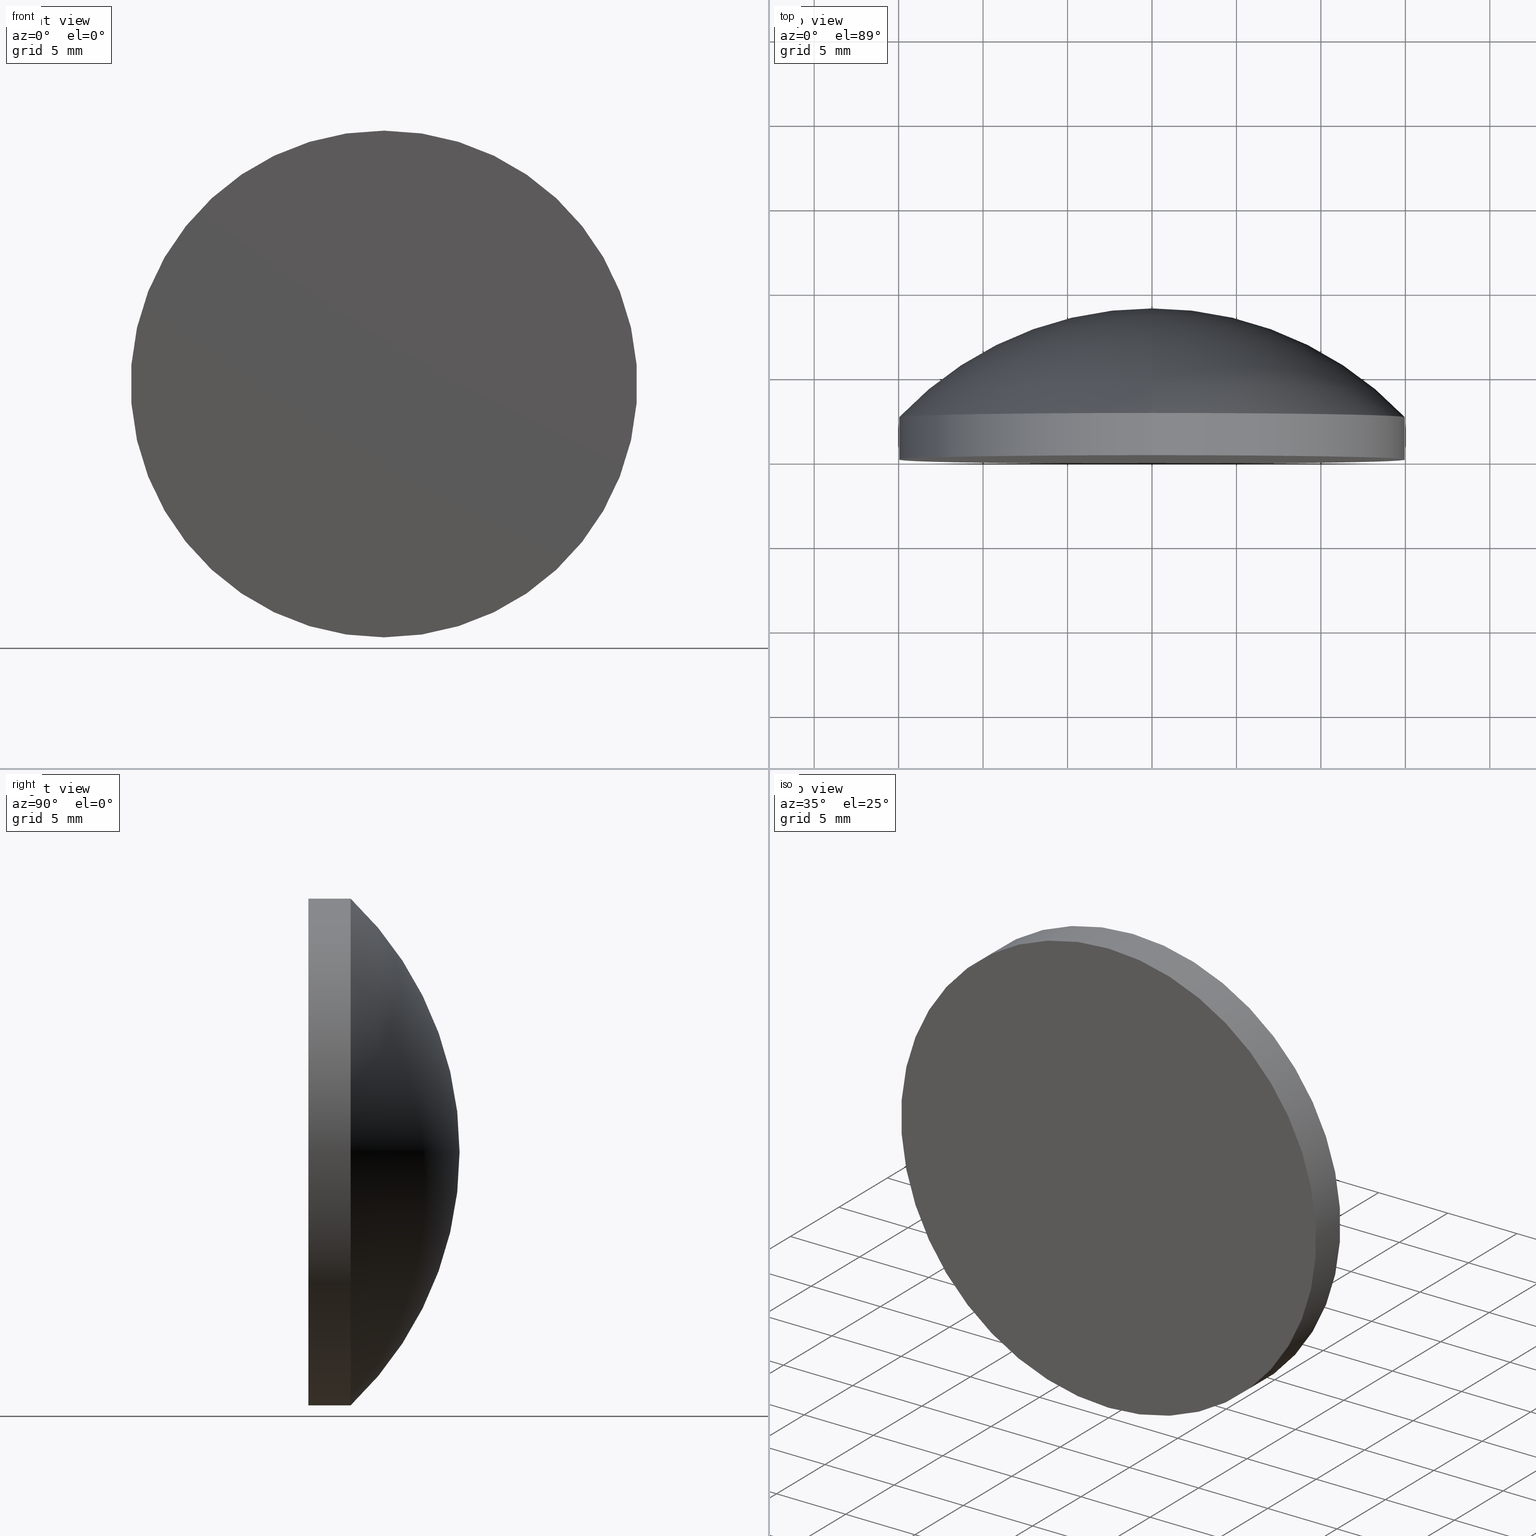
[diagram: canonical four-view strip — front | top / right | iso, engineering-drawing reading convention]
A machine part, canonical four-view strip (front | top / right | iso — engineering-drawing reading convention). The complete STEP part file that produces these views, byte-faithful:
ISO-10303-21;
HEADER;
FILE_DESCRIPTION (( 'STEP AP203' ),
    '1' );
FILE_NAME ('100571.STEP',
    '2024-05-09T07:51:30',
    ( '' ),
    ( '' ),
    'SwSTEP 2.0',
    'SolidWorks 2020',
    '' );
FILE_SCHEMA (( 'CONFIG_CONTROL_DESIGN' ));
ENDSEC;

DATA;
#1 = SECURITY_CLASSIFICATION_LEVEL ( 'unclassified' ) ;
#2 = ORIENTED_EDGE ( 'NONE', *, *, #139, .F. ) ;
#3 = DIRECTION ( 'NONE',  ( 0.000000000000000000, 0.000000000000000000, 1.000000000000000000 ) ) ;
#4 = PERSON_AND_ORGANIZATION_ROLE ( 'design_owner' ) ;
#5 = DIRECTION ( 'NONE',  ( 0.000000000000000000, 0.000000000000000000, 1.000000000000000000 ) ) ;
#6 = PERSON_AND_ORGANIZATION ( #98, #87 ) ;
#7 = DIRECTION ( 'NONE',  ( 0.000000000000000000, 0.000000000000000000, 1.000000000000000000 ) ) ;
#8 = PRODUCT ( '100571', '100571', '', ( #99 ) ) ;
#9 = VECTOR ( 'NONE', #81, 1000.000000000000000 ) ;
#10 = AXIS2_PLACEMENT_3D ( 'NONE', #108, #18, #51 ) ;
#11 = CIRCLE ( 'NONE', #119, 15.00000000000000000 ) ;
#12 = APPROVAL_DATE_TIME ( #136, #165 ) ;
#13 = MANIFOLD_SOLID_BREP ( '��ת1', #138 ) ;
#14 = VERTEX_POINT ( 'NONE', #169 ) ;
#15 =( LENGTH_UNIT ( ) NAMED_UNIT ( * ) SI_UNIT ( .MILLI., .METRE. ) );
#16 = ORIENTED_EDGE ( 'NONE', *, *, #199, .F. ) ;
#17 = CARTESIAN_POINT ( 'NONE',  ( 0.000000000000000000, -1.734723475976807094E-15, 0.000000000000000000 ) ) ;
#18 = DIRECTION ( 'NONE',  ( 0.000000000000000000, 0.000000000000000000, 1.000000000000000000 ) ) ;
#19 = DATE_AND_TIME ( #168, #142 ) ;
#20 = CARTESIAN_POINT ( 'NONE',  ( 0.000000000000000000, -1.734723475976807094E-15, 0.000000000000000000 ) ) ;
#21 = CC_DESIGN_APPROVAL ( #72, ( #104 ) ) ;
#22 = DIRECTION ( 'NONE',  ( 1.000000000000000000, 0.000000000000000000, 1.224646799147353207E-16 ) ) ;
#23 = EDGE_CURVE ( 'NONE', #94, #14, #93, .T. ) ;
#24 = CC_DESIGN_PERSON_AND_ORGANIZATION_ASSIGNMENT ( #133, #91, ( #48 ) ) ;
#25 = ORIENTED_EDGE ( 'NONE', *, *, #23, .F. ) ;
#26 = ORIENTED_EDGE ( 'NONE', *, *, #154, .F. ) ;
#27 = CC_DESIGN_PERSON_AND_ORGANIZATION_ASSIGNMENT ( #149, #31, ( #104 ) ) ;
#28 = COORDINATED_UNIVERSAL_TIME_OFFSET ( 8, 0, .AHEAD. ) ;
#29 = EDGE_LOOP ( 'NONE', ( #143, #90, #2 ) ) ;
#30 = AXIS2_PLACEMENT_3D ( 'NONE', #66, #152, #52 ) ;
#31 = PERSON_AND_ORGANIZATION_ROLE ( 'creator' ) ;
#32 = LINE ( 'NONE', #161, #9 ) ;
#33 = CARTESIAN_POINT ( 'NONE',  ( 0.000000000000000000, 8.949999999999999289, 0.000000000000000000 ) ) ;
#34 = COORDINATED_UNIVERSAL_TIME_OFFSET ( 8, 0, .AHEAD. ) ;
#35 = DIRECTION ( 'NONE',  ( -0.000000000000000000, 1.000000000000000000, -0.000000000000000000 ) ) ;
#36 = DATE_AND_TIME ( #128, #60 ) ;
#37 = APPROVAL_PERSON_ORGANIZATION ( #200, #166, #171 ) ;
#38 = CC_DESIGN_PERSON_AND_ORGANIZATION_ASSIGNMENT ( #78, #4, ( #8 ) ) ;
#39 = AXIS2_PLACEMENT_3D ( 'NONE', #113, #63, #110 ) ;
#40 = EDGE_LOOP ( 'NONE', ( #158, #16 ) ) ;
#41 = CC_DESIGN_SECURITY_CLASSIFICATION ( #177, ( #48 ) ) ;
#42 = APPROVAL_ROLE ( '' ) ;
#43 = DIRECTION ( 'NONE',  ( -0.000000000000000000, 1.000000000000000000, -0.000000000000000000 ) ) ;
#44 = APPROVAL_DATE_TIME ( #36, #166 ) ;
#45 = ORIENTED_EDGE ( 'NONE', *, *, #154, .T. ) ;
#46 =( NAMED_UNIT ( * ) PLANE_ANGLE_UNIT ( ) SI_UNIT ( $, .RADIAN. ) );
#47 = PERSON_AND_ORGANIZATION ( #98, #87 ) ;
#48 = PRODUCT_DEFINITION_FORMATION_WITH_SPECIFIED_SOURCE ( '�κ�', '', #8, .NOT_KNOWN. ) ;
#49 = APPROVAL_ROLE ( '' ) ;
#50 = CARTESIAN_POINT ( 'NONE',  ( -1.653249964113639859E-19, -11.71999995591560584, 0.001349981043730075214 ) ) ;
#51 = DIRECTION ( 'NONE',  ( 1.000000000000000000, 0.000000000000000000, 0.000000000000000000 ) ) ;
#52 = DIRECTION ( 'NONE',  ( 0.000000000000000000, 0.000000000000000000, 1.000000000000000000 ) ) ;
#53 = AXIS2_PLACEMENT_3D ( 'NONE', #92, #43, #183 ) ;
#54 = ADVANCED_FACE ( 'NONE', ( #147 ), #186, .T. ) ;
#55 = AXIS2_PLACEMENT_3D ( 'NONE', #20, #132, #68 ) ;
#56 = EDGE_CURVE ( 'NONE', #75, #14, #32, .T. ) ;
#57 = VECTOR ( 'NONE', #187, 1000.000000000000000 ) ;
#58 = VERTEX_POINT ( 'NONE', #129 ) ;
#59 = AXIS2_PLACEMENT_3D ( 'NONE', #174, #137, #192 ) ;
#60 = LOCAL_TIME ( 15, 51, 30.00000000000000000, #175 ) ;
#61 = ORIENTED_EDGE ( 'NONE', *, *, #179, .T. ) ;
#62 = APPROVAL_STATUS ( 'not_yet_approved' ) ;
#63 = DIRECTION ( 'NONE',  ( -0.000000000000000000, 1.000000000000000000, -0.000000000000000000 ) ) ;
#64 = CARTESIAN_POINT ( 'NONE',  ( 0.000000000000000000, -11.71999995591560584, 0.000000000000000000 ) ) ;
#65 = APPROVAL_STATUS ( 'not_yet_approved' ) ;
#66 = CARTESIAN_POINT ( 'NONE',  ( 0.000000000000000000, 8.949999999999999289, 0.000000000000000000 ) ) ;
#67 = APPLICATION_PROTOCOL_DEFINITION ( 'international standard', 'config_control_design', 1994, #120 ) ;
#68 = DIRECTION ( 'NONE',  ( 0.000000000000000000, 0.000000000000000000, 1.000000000000000000 ) ) ;
#69 = AXIS2_PLACEMENT_3D ( 'NONE', #135, #85, #164 ) ;
#70 = PERSON_AND_ORGANIZATION ( #98, #87 ) ;
#71 = FACE_OUTER_BOUND ( 'NONE', #29, .T. ) ;
#72 = APPROVAL ( #65, 'δָ��' ) ;
#73 = ADVANCED_FACE ( 'NONE', ( #150 ), #105, .T. ) ;
#74 = DESIGN_CONTEXT ( 'detailed design', #120, 'design' ) ;
#75 = VERTEX_POINT ( 'NONE', #148 ) ;
#76 = APPROVAL_PERSON_ORGANIZATION ( #151, #165, #49 ) ;
#77 = AXIS2_PLACEMENT_3D ( 'NONE', #50, #22, #83 ) ;
#78 = PERSON_AND_ORGANIZATION ( #98, #87 ) ;
#79 = APPLICATION_PROTOCOL_DEFINITION ( 'international standard', 'config_control_design', 1994, #86 ) ;
#80 = CC_DESIGN_DATE_AND_TIME_ASSIGNMENT ( #146, #114, ( #177 ) ) ;
#81 = DIRECTION ( 'NONE',  ( -0.000000000000000000, 1.000000000000000000, -0.000000000000000000 ) ) ;
#82 = DIRECTION ( 'NONE',  ( -1.000000000000000000, 0.000000000000000000, 0.000000000000000000 ) ) ;
#83 = DIRECTION ( 'NONE',  ( 1.224646799147353207E-16, 0.000000000000000000, -1.000000000000000000 ) ) ;
#84 = DATE_TIME_ROLE ( 'creation_date' ) ;
#85 = DIRECTION ( 'NONE',  ( -0.000000000000000000, 1.000000000000000000, -0.000000000000000000 ) ) ;
#86 = APPLICATION_CONTEXT ( 'configuration controlled 3d designs of mechanical parts and assemblies' ) ;
#87 = ORGANIZATION ( 'δָ��', 'δָ��', '' ) ;
#88 = FACE_OUTER_BOUND ( 'NONE', #40, .T. ) ;
#89 = ADVANCED_FACE ( 'NONE', ( #71 ), #145, .T. ) ;
#90 = ORIENTED_EDGE ( 'NONE', *, *, #109, .T. ) ;
#91 = PERSON_AND_ORGANIZATION_ROLE ( 'creator' ) ;
#92 = CARTESIAN_POINT ( 'NONE',  ( 0.000000000000000000, 2.499999999999998668, 0.000000000000000000 ) ) ;
#93 = CIRCLE ( 'NONE', #53, 15.00000000000000000 ) ;
#94 = VERTEX_POINT ( 'NONE', #130 ) ;
#95 = DIRECTION ( 'NONE',  ( -0.000000000000000000, 1.000000000000000000, -0.000000000000000000 ) ) ;
#96 = CALENDAR_DATE ( 2024, 9, 5 ) ;
#97 = PLANE ( 'NONE',  #176 ) ;
#98 = PERSON ( 'δָ��', 'δָ��', 'δָ��', ('δָ��'), ('δָ��'), ('δָ��') ) ;
#99 = MECHANICAL_CONTEXT ( 'NONE', #86, 'mechanical' ) ;
#100 = CYLINDRICAL_SURFACE ( 'NONE', #30, 15.00000000000000000 ) ;
#101 = CC_DESIGN_PERSON_AND_ORGANIZATION_ASSIGNMENT ( #70, #117, ( #177 ) ) ;
#102 = CC_DESIGN_APPROVAL ( #166, ( #177 ) ) ;
#103 =( NAMED_UNIT ( * ) SI_UNIT ( $, .STERADIAN. ) SOLID_ANGLE_UNIT ( ) );
#104 = PRODUCT_DEFINITION ( 'δ֪', '', #48, #74 ) ;
#105 = TOROIDAL_SURFACE ( 'NONE', #198, -0.001349981043730075214, 20.67000000000000526 ) ;
#106 = ORIENTED_EDGE ( 'NONE', *, *, #56, .T. ) ;
#107 = CIRCLE ( 'NONE', #55, 15.00000000000000000 ) ;
#108 = CARTESIAN_POINT ( 'NONE',  ( 0.000000000000000000, 0.000000000000000000, 0.000000000000000000 ) ) ;
#109 = EDGE_CURVE ( 'NONE', #14, #125, #156, .T. ) ;
#110 = DIRECTION ( 'NONE',  ( 0.000000000000000000, 0.000000000000000000, 1.000000000000000000 ) ) ;
#111 = PRODUCT_RELATED_PRODUCT_CATEGORY ( 'detail', '', ( #8 ) ) ;
#112 = SHAPE_DEFINITION_REPRESENTATION ( #121, #189 ) ;
#113 = CARTESIAN_POINT ( 'NONE',  ( 0.000000000000000000, 8.949999999999999289, 0.000000000000000000 ) ) ;
#114 = DATE_TIME_ROLE ( 'classification_date' ) ;
#115 = PERSON_AND_ORGANIZATION_ROLE ( 'design_supplier' ) ;
#116 = CARTESIAN_POINT ( 'NONE',  ( 0.000000000000000000, -11.71999995591560584, -0.001349981043730075214 ) ) ;
#117 = PERSON_AND_ORGANIZATION_ROLE ( 'classification_officer' ) ;
#118 = CARTESIAN_POINT ( 'NONE',  ( 0.000000000000000000, 8.949999999999999289, 15.00000000000000000 ) ) ;
#119 = AXIS2_PLACEMENT_3D ( 'NONE', #17, #95, #5 ) ;
#120 = APPLICATION_CONTEXT ( 'configuration controlled 3d designs of mechanical parts and assemblies' ) ;
#121 = PRODUCT_DEFINITION_SHAPE ( 'NONE', 'NONE',  #104 ) ;
#122 = CIRCLE ( 'NONE', #155, 20.67000000000000526 ) ;
#123 = ORIENTED_EDGE ( 'NONE', *, *, #109, .F. ) ;
#124 = UNCERTAINTY_MEASURE_WITH_UNIT (LENGTH_MEASURE( 1.000000000000000082E-05 ), #15, 'distance_accuracy_value', 'NONE');
#125 = VERTEX_POINT ( 'NONE', #33 ) ;
#126 = ADVANCED_FACE ( 'NONE', ( #190 ), #100, .T. ) ;
#127 = ORIENTED_EDGE ( 'NONE', *, *, #199, .T. ) ;
#128 = CALENDAR_DATE ( 2024, 9, 5 ) ;
#129 = CARTESIAN_POINT ( 'NONE',  ( 0.000000000000000000, -1.734723475976807094E-15, 15.00000000000000000 ) ) ;
#130 = CARTESIAN_POINT ( 'NONE',  ( 0.000000000000000000, 2.499999999999999556, 14.99999999999999645 ) ) ;
#131 = DATE_AND_TIME ( #173, #195 ) ;
#132 = DIRECTION ( 'NONE',  ( -0.000000000000000000, 1.000000000000000000, -0.000000000000000000 ) ) ;
#133 = PERSON_AND_ORGANIZATION ( #98, #87 ) ;
#134 = APPROVAL_PERSON_ORGANIZATION ( #6, #72, #42 ) ;
#135 = CARTESIAN_POINT ( 'NONE',  ( 0.000000000000000000, 2.499999999999998668, 0.000000000000000000 ) ) ;
#136 = DATE_AND_TIME ( #153, #191 ) ;
#137 = DIRECTION ( 'NONE',  ( -0.000000000000000000, 1.000000000000000000, -0.000000000000000000 ) ) ;
#138 = CLOSED_SHELL ( 'NONE', ( #126, #89, #73, #144, #54 ) ) ;
#139 = EDGE_CURVE ( 'NONE', #94, #125, #122, .T. ) ;
#140 = LOCAL_TIME ( 15, 51, 30.00000000000000000, #28 ) ;
#141 = CC_DESIGN_PERSON_AND_ORGANIZATION_ASSIGNMENT ( #47, #115, ( #48 ) ) ;
#142 = LOCAL_TIME ( 15, 51, 30.00000000000000000, #34 ) ;
#143 = ORIENTED_EDGE ( 'NONE', *, *, #23, .T. ) ;
#144 = ADVANCED_FACE ( 'NONE', ( #88 ), #97, .T. ) ;
#145 = TOROIDAL_SURFACE ( 'NONE', #59, -0.001349981043730075214, 20.67000000000000526 ) ;
#146 = DATE_AND_TIME ( #96, #140 ) ;
#147 = FACE_OUTER_BOUND ( 'NONE', #180, .T. ) ;
#148 = CARTESIAN_POINT ( 'NONE',  ( 1.836970198721029589E-15, -1.734723475976807094E-15, -15.00000000000000000 ) ) ;
#149 = PERSON_AND_ORGANIZATION ( #98, #87 ) ;
#150 = FACE_OUTER_BOUND ( 'NONE', #167, .T. ) ;
#151 = PERSON_AND_ORGANIZATION ( #98, #87 ) ;
#152 = DIRECTION ( 'NONE',  ( -0.000000000000000000, 1.000000000000000000, -0.000000000000000000 ) ) ;
#153 = CALENDAR_DATE ( 2024, 9, 5 ) ;
#154 = EDGE_CURVE ( 'NONE', #58, #94, #172, .T. ) ;
#155 = AXIS2_PLACEMENT_3D ( 'NONE', #116, #82, #3 ) ;
#156 = CIRCLE ( 'NONE', #77, 20.67000000000000526 ) ;
#157 = CC_DESIGN_APPROVAL ( #165, ( #48 ) ) ;
#158 = ORIENTED_EDGE ( 'NONE', *, *, #179, .F. ) ;
#159 = CIRCLE ( 'NONE', #69, 15.00000000000000000 ) ;
#160 = EDGE_LOOP ( 'NONE', ( #61, #106, #25, #26 ) ) ;
#161 = CARTESIAN_POINT ( 'NONE',  ( 1.836970198721029589E-15, 8.949999999999999289, -15.00000000000000000 ) ) ;
#162 = DIRECTION ( 'NONE',  ( 0.000000000000000000, -0.000000000000000000, -1.000000000000000000 ) ) ;
#163 = COORDINATED_UNIVERSAL_TIME_OFFSET ( 8, 0, .AHEAD. ) ;
#164 = DIRECTION ( 'NONE',  ( 0.000000000000000000, 0.000000000000000000, 1.000000000000000000 ) ) ;
#165 = APPROVAL ( #184, 'δָ��' ) ;
#166 = APPROVAL ( #62, 'δָ��' ) ;
#167 = EDGE_LOOP ( 'NONE', ( #123, #181, #197 ) ) ;
#168 = CALENDAR_DATE ( 2024, 9, 5 ) ;
#169 = CARTESIAN_POINT ( 'NONE',  ( 1.836970198721029194E-15, 2.499999999999999556, -14.99999999999999645 ) ) ;
#170 = CARTESIAN_POINT ( 'NONE',  ( 0.000000000000000000, -9.184850993605147944E-16, 0.000000000000000000 ) ) ;
#171 = APPROVAL_ROLE ( '' ) ;
#172 = LINE ( 'NONE', #118, #57 ) ;
#173 = CALENDAR_DATE ( 2024, 9, 5 ) ;
#174 = CARTESIAN_POINT ( 'NONE',  ( 0.000000000000000000, -11.71999995591560584, 0.000000000000000000 ) ) ;
#175 = COORDINATED_UNIVERSAL_TIME_OFFSET ( 8, 0, .AHEAD. ) ;
#176 = AXIS2_PLACEMENT_3D ( 'NONE', #170, #194, #162 ) ;
#177 = SECURITY_CLASSIFICATION ( '', '', #1 ) ;
#178 =( GEOMETRIC_REPRESENTATION_CONTEXT ( 3 ) GLOBAL_UNCERTAINTY_ASSIGNED_CONTEXT ( ( #124 ) ) GLOBAL_UNIT_ASSIGNED_CONTEXT ( ( #15, #46, #103 ) ) REPRESENTATION_CONTEXT ( 'NONE', 'WORKASPACE' ) );
#179 = EDGE_CURVE ( 'NONE', #58, #75, #11, .T. ) ;
#180 = EDGE_LOOP ( 'NONE', ( #201, #127, #45, #182 ) ) ;
#181 = ORIENTED_EDGE ( 'NONE', *, *, #185, .T. ) ;
#182 = ORIENTED_EDGE ( 'NONE', *, *, #185, .F. ) ;
#183 = DIRECTION ( 'NONE',  ( 0.000000000000000000, 0.000000000000000000, 1.000000000000000000 ) ) ;
#184 = APPROVAL_STATUS ( 'not_yet_approved' ) ;
#185 = EDGE_CURVE ( 'NONE', #14, #94, #159, .T. ) ;
#186 = CYLINDRICAL_SURFACE ( 'NONE', #39, 15.00000000000000000 ) ;
#187 = DIRECTION ( 'NONE',  ( -0.000000000000000000, 1.000000000000000000, -0.000000000000000000 ) ) ;
#188 = COORDINATED_UNIVERSAL_TIME_OFFSET ( 8, 0, .AHEAD. ) ;
#189 = ADVANCED_BREP_SHAPE_REPRESENTATION ( '100571', ( #13, #10 ), #178 ) ;
#190 = FACE_OUTER_BOUND ( 'NONE', #160, .T. ) ;
#191 = LOCAL_TIME ( 15, 51, 30.00000000000000000, #188 ) ;
#192 = DIRECTION ( 'NONE',  ( 0.000000000000000000, 0.000000000000000000, 1.000000000000000000 ) ) ;
#193 = APPROVAL_DATE_TIME ( #131, #72 ) ;
#194 = DIRECTION ( 'NONE',  ( 0.000000000000000000, -1.000000000000000000, 0.000000000000000000 ) ) ;
#195 = LOCAL_TIME ( 15, 51, 30.00000000000000000, #163 ) ;
#196 = CC_DESIGN_DATE_AND_TIME_ASSIGNMENT ( #19, #84, ( #104 ) ) ;
#197 = ORIENTED_EDGE ( 'NONE', *, *, #139, .T. ) ;
#198 = AXIS2_PLACEMENT_3D ( 'NONE', #64, #35, #7 ) ;
#199 = EDGE_CURVE ( 'NONE', #75, #58, #107, .T. ) ;
#200 = PERSON_AND_ORGANIZATION ( #98, #87 ) ;
#201 = ORIENTED_EDGE ( 'NONE', *, *, #56, .F. ) ;
ENDSEC;
END-ISO-10303-21;
